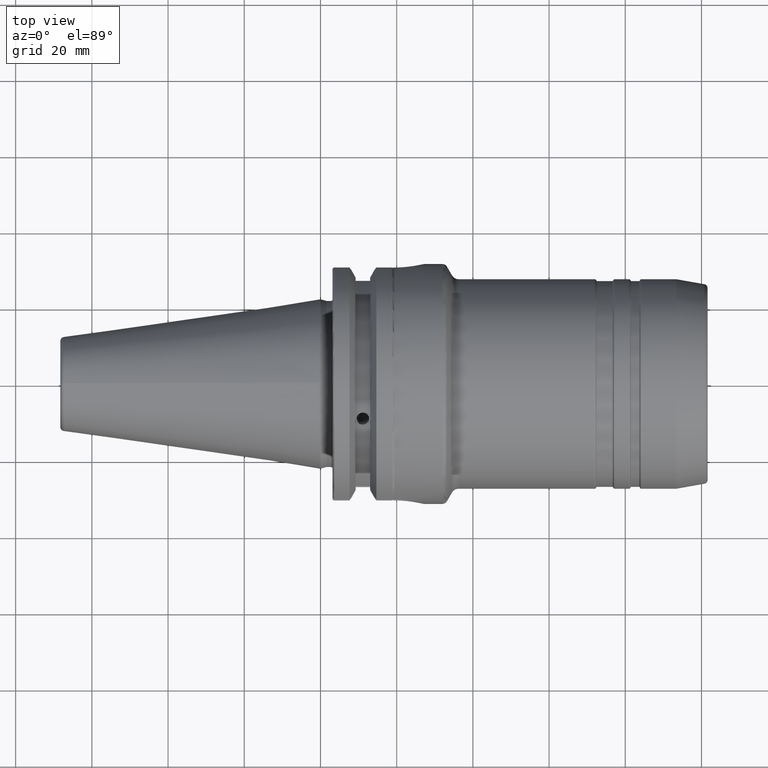
[diagram: clean part render]
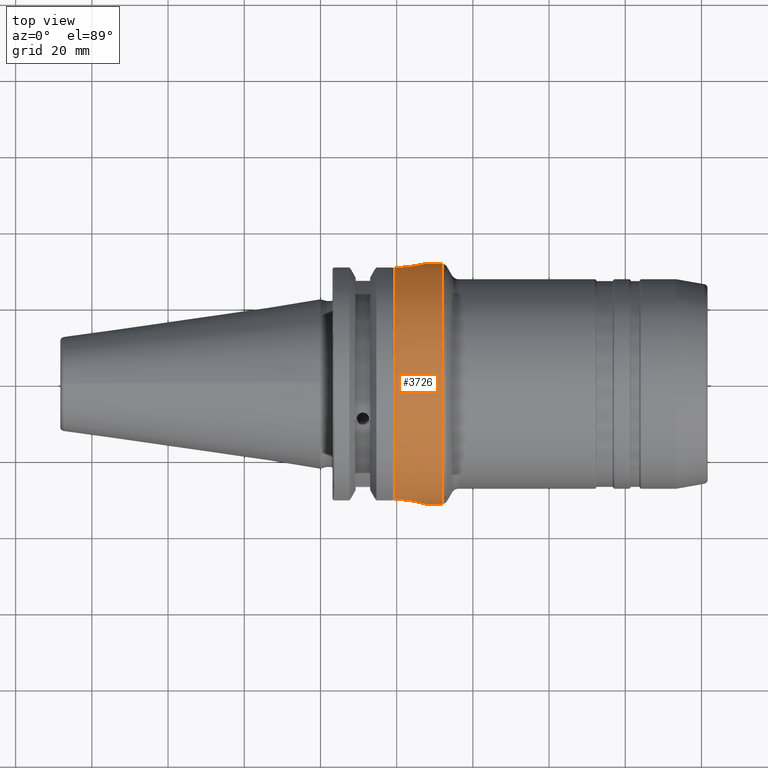
[diagram: same view with one face highlighted and labeled with its STEP entity id]
A machine part, top view. The second image highlights one B-rep face of the part: STEP entity #3726.
In plain terms, the highlighted cylindrical surface (partial cylindrical patch) has radius 31.5 mm, axis along (1, 0, 0).
Its self-contained STEP definition (entity closure, byte-faithful):
#755=CARTESIAN_POINT('',(1.945401232396E1,0.E0,0.E0));
#756=DIRECTION('',(1.E0,0.E0,0.E0));
#757=DIRECTION('',(0.E0,9.598158325093E-1,2.806306605923E-1));
#758=AXIS2_PLACEMENT_3D('',#755,#756,#757);
#777=DIRECTION('',(-1.E0,-6.280074063801E-9,2.119709002142E-8));
#778=VECTOR('',#777,4.040123239563E-1);
#779=CARTESIAN_POINT('',(1.945401232396E1,3.023419872404E1,8.839865808659E0));
#780=LINE('',#779,#778);
#781=DIRECTION('',(1.E0,0.E0,-1.776356839400E-14));
#782=VECTOR('',#781,9.999999999999E-2);
#783=CARTESIAN_POINT('',(1.905E1,3.041599815475E1,8.191666666667E0));
#784=LINE('',#783,#782);
#785=CARTESIAN_POINT('',(2.73425E1,3.15E1,-1.645570042486E-14));
#786=CARTESIAN_POINT('',(2.73425E1,3.15E1,5.200396906748E-1));
#787=CARTESIAN_POINT('',(2.724892885559E1,3.147537638245E1,1.554652275098E0));
#788=CARTESIAN_POINT('',(2.676369767957E1,3.135250089312E1,3.174246958476E0));
#789=CARTESIAN_POINT('',(2.599518584623E1,3.117271369791E1,4.593874255301E0));
#790=CARTESIAN_POINT('',(2.497828854696E1,3.096274375567E1,5.831248918158E0));
#791=CARTESIAN_POINT('',(2.373846761148E1,3.075070837589E1,6.849986588246E0));
#792=CARTESIAN_POINT('',(2.231395147833E1,3.056787697849E1,7.614909403548E0));
#793=CARTESIAN_POINT('',(2.075507674328E1,3.044463079849E1,8.087688707810E0));
#794=CARTESIAN_POINT('',(1.969258530254E1,3.041599815475E1,8.191666666667E0));
#795=CARTESIAN_POINT('',(1.915E1,3.041599815475E1,8.191666666667E0));
#797=DIRECTION('',(1.E0,-8.397047532784E-13,0.E0));
#798=VECTOR('',#797,4.582073519435E0);
#799=CARTESIAN_POINT('',(2.73425E1,3.15E1,-1.645570042486E-14));
#800=LINE('',#799,#798);
#801=CARTESIAN_POINT('',(3.192457351944E1,0.E0,0.E0));
#802=DIRECTION('',(1.E0,0.E0,0.E0));
#803=DIRECTION('',(0.E0,1.E0,0.E0));
#804=AXIS2_PLACEMENT_3D('',#801,#802,#803);
#806=CARTESIAN_POINT('',(1.915E1,-3.041599815475E1,8.191666666667E0));
#807=CARTESIAN_POINT('',(1.969211322659E1,-3.041599815475E1,8.191666666667E0));
#808=CARTESIAN_POINT('',(2.075370134712E1,-3.044458879061E1,8.087833516638E0));
#809=CARTESIAN_POINT('',(2.231082195867E1,-3.056756994280E1,7.616123766895E0));
#810=CARTESIAN_POINT('',(2.373475047374E1,-3.075017005168E1,6.852292398079E0));
#811=CARTESIAN_POINT('',(2.497338833924E1,-3.096181216969E1,5.836132221195E0));
#812=CARTESIAN_POINT('',(2.599317238038E1,-3.117224210060E1,4.597332173183E0));
#813=CARTESIAN_POINT('',(2.676346671648E1,-3.135244106753E1,3.175179523794E0));
#814=CARTESIAN_POINT('',(2.724904150487E1,-3.147540540175E1,1.554267292979E0));
#815=CARTESIAN_POINT('',(2.73425E1,-3.15E1,5.197571565574E-1));
#816=CARTESIAN_POINT('',(2.73425E1,-3.15E1,1.531611232950E-14));
#818=DIRECTION('',(1.E0,0.E0,0.E0));
#819=VECTOR('',#818,9.999999999999E-2);
#820=CARTESIAN_POINT('',(1.905E1,-3.041599815475E1,8.191666666667E0));
#821=LINE('',#820,#819);
#822=DIRECTION('',(-1.E0,-2.334477623003E-8,-7.827704131455E-8));
#823=VECTOR('',#822,4.040123239563E-1);
#824=CARTESIAN_POINT('',(1.945401232396E1,-3.023419872404E1,8.839865808659E0));
#825=LINE('',#824,#823);
#840=CARTESIAN_POINT('',(1.905E1,0.E0,0.E0));
#841=DIRECTION('',(1.E0,0.E0,0.E0));
#842=DIRECTION('',(0.E0,9.655872430081E-1,2.600793650794E-1));
#843=AXIS2_PLACEMENT_3D('',#840,#841,#842);
#854=CARTESIAN_POINT('',(1.905E1,0.E0,0.E0));
#855=DIRECTION('',(1.E0,0.E0,0.E0));
#856=DIRECTION('',(0.E0,-9.598158325057E-1,2.806306606046E-1));
#857=AXIS2_PLACEMENT_3D('',#854,#855,#856);
#1013=CARTESIAN_POINT('',(2.73425E1,-3.15E1,1.531611232950E-14));
#1025=DIRECTION('',(1.E0,8.397047532784E-13,0.E0));
#1026=VECTOR('',#1025,4.582073519435E0);
#1027=CARTESIAN_POINT('',(2.73425E1,-3.15E1,1.531611232950E-14));
#1028=LINE('',#1027,#1026);
#1044=CARTESIAN_POINT('',(2.73425E1,3.15E1,-1.645570042486E-14));
#2694=VERTEX_POINT('',#1044);
#2695=VERTEX_POINT('',#795);
#2704=VERTEX_POINT('',#1013);
#2705=VERTEX_POINT('',#806);
#2706=CARTESIAN_POINT('',(1.905E1,-3.041599815475E1,8.191666666667E0));
#2707=VERTEX_POINT('',#2706);
#2708=CARTESIAN_POINT('',(1.905E1,3.041599815475E1,8.191666666667E0));
#2710=VERTEX_POINT('',#2708);
#2832=CARTESIAN_POINT('',(3.192457351944E1,-3.15E1,0.E0));
#2833=CARTESIAN_POINT('',(3.192457351944E1,3.15E1,0.E0));
#2834=VERTEX_POINT('',#2832);
#2835=VERTEX_POINT('',#2833);
#2852=CARTESIAN_POINT('',(1.945401232396E1,3.023419872404E1,8.839865808659E0));
#2853=CARTESIAN_POINT('',(1.905E1,3.023419872151E1,8.839865817223E0));
#2854=VERTEX_POINT('',#2852);
#2855=VERTEX_POINT('',#2853);
#2856=CARTESIAN_POINT('',(1.945401232396E1,-3.023419872404E1,8.839865808659E0));
#2857=CARTESIAN_POINT('',(1.905E1,-3.023419873347E1,8.839865777034E0));
#2858=VERTEX_POINT('',#2856);
#2859=VERTEX_POINT('',#2857);
#3698=CARTESIAN_POINT('',(1.905E1,0.E0,0.E0));
#3699=DIRECTION('',(1.E0,0.E0,0.E0));
#3700=DIRECTION('',(0.E0,-1.E0,0.E0));
#3701=AXIS2_PLACEMENT_3D('',#3698,#3699,#3700);
#3702=CYLINDRICAL_SURFACE('',#3701,3.15E1);
#3703=ORIENTED_EDGE('',*,*,#3689,.F.);
#3705=ORIENTED_EDGE('',*,*,#3704,.T.);
#3707=ORIENTED_EDGE('',*,*,#3706,.F.);
#3709=ORIENTED_EDGE('',*,*,#3708,.T.);
#3711=ORIENTED_EDGE('',*,*,#3710,.F.);
#3713=ORIENTED_EDGE('',*,*,#3712,.T.);
#3715=ORIENTED_EDGE('',*,*,#3714,.T.);
#3717=ORIENTED_EDGE('',*,*,#3716,.F.);
#3719=ORIENTED_EDGE('',*,*,#3718,.F.);
#3720=ORIENTED_EDGE('',*,*,#3629,.F.);
#3722=ORIENTED_EDGE('',*,*,#3721,.F.);
#3723=ORIENTED_EDGE('',*,*,#3657,.F.);
#3724=EDGE_LOOP('',(#3703,#3705,#3707,#3709,#3711,#3713,#3715,#3717,#3719,#3720,
#3722,#3723));
#3725=FACE_OUTER_BOUND('',#3724,.F.);
#3726=ADVANCED_FACE('',(#3725),#3702,.T.);
#759=CIRCLE('',#758,3.15E1);
#796=B_SPLINE_CURVE_WITH_KNOTS('',3,(#785,#786,#787,#788,#789,#790,#791,#792,
#793,#794,#795),.UNSPECIFIED.,.F.,.F.,(4,1,1,1,1,1,1,1,4),(0.E0,1.25E-1,2.5E-1,
3.75E-1,5.E-1,6.25E-1,7.5E-1,8.75E-1,1.E0),.UNSPECIFIED.);
#805=CIRCLE('',#804,3.15E1);
#817=B_SPLINE_CURVE_WITH_KNOTS('',3,(#806,#807,#808,#809,#810,#811,#812,#813,
#814,#815,#816),.UNSPECIFIED.,.F.,.F.,(4,1,1,1,1,1,1,1,4),(0.E0,1.25E-1,2.5E-1,
3.75E-1,5.E-1,6.25E-1,7.5E-1,8.75E-1,1.E0),.UNSPECIFIED.);
#844=CIRCLE('',#843,3.15E1);
#858=CIRCLE('',#857,3.15E1);
#3629=EDGE_CURVE('',#2707,#2705,#821,.T.);
#3657=EDGE_CURVE('',#2858,#2859,#825,.T.);
#3689=EDGE_CURVE('',#2854,#2858,#759,.T.);
#3704=EDGE_CURVE('',#2854,#2855,#780,.T.);
#3706=EDGE_CURVE('',#2710,#2855,#844,.T.);
#3708=EDGE_CURVE('',#2710,#2695,#784,.T.);
#3710=EDGE_CURVE('',#2694,#2695,#796,.T.);
#3712=EDGE_CURVE('',#2694,#2835,#800,.T.);
#3714=EDGE_CURVE('',#2835,#2834,#805,.T.);
#3716=EDGE_CURVE('',#2704,#2834,#1028,.T.);
#3718=EDGE_CURVE('',#2705,#2704,#817,.T.);
#3721=EDGE_CURVE('',#2859,#2707,#858,.T.);